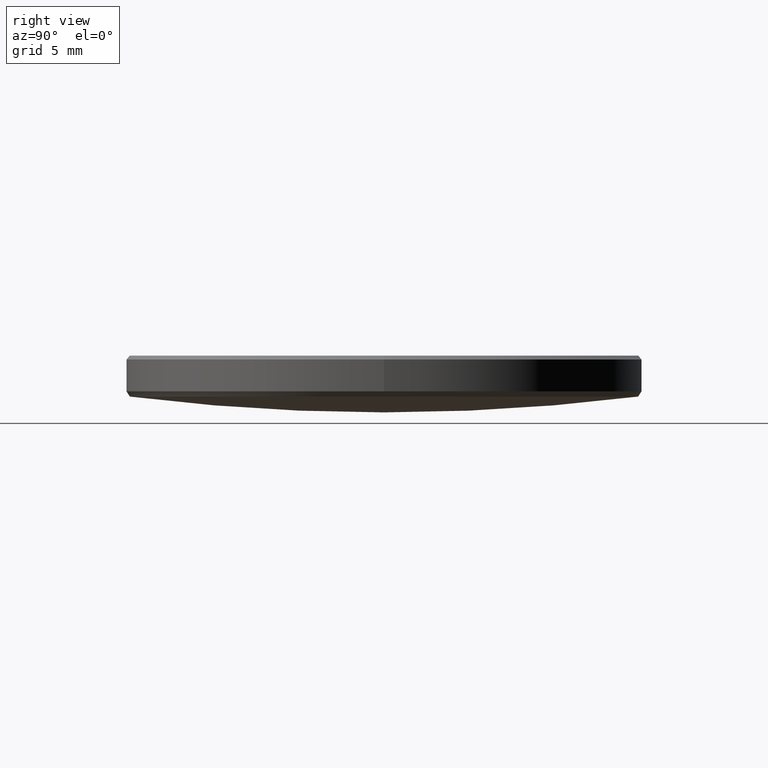
[diagram: clean part render]
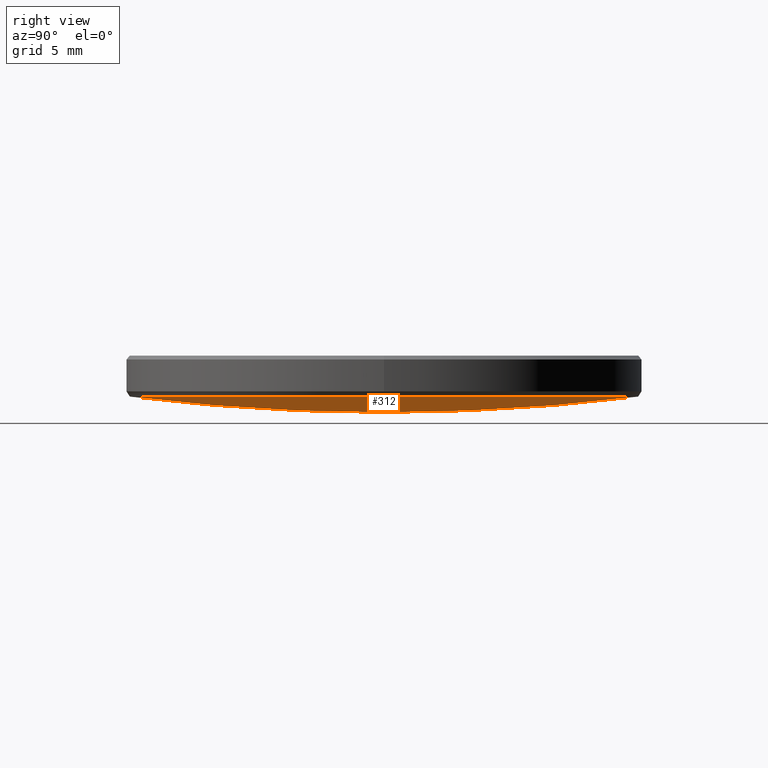
[diagram: same view with one face highlighted and labeled with its STEP entity id]
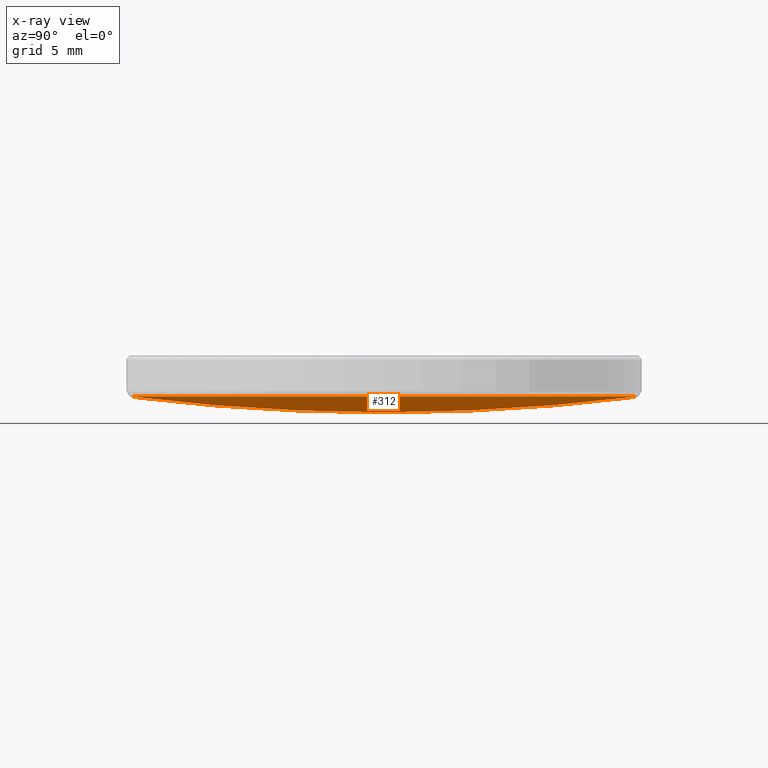
[diagram: x-ray of the same camera — body ghosted, the highlighted face saturated]
A machine part, right view. The second image highlights one B-rep face of the part: STEP entity #312.
The next image is the same camera in x-ray: the body ghosted, the highlighted face saturated — about 0% of this face is hidden behind the body in this view.
In plain terms, the highlighted spherical surface has radius 100.89 mm.
Its self-contained STEP definition (entity closure, byte-faithful):
#2 = CIRCLE ( 'NONE', #8, 12.50176226215777930 ) ;
#3 = ORIENTED_EDGE ( 'NONE', *, *, #305, .F. ) ;
#5 = VERTEX_POINT ( 'NONE', #322 ) ;
#8 = AXIS2_PLACEMENT_3D ( 'NONE', #143, #242, #31 ) ;
#10 = DIRECTION ( 'NONE',  ( 0.000000000000000000, 0.000000000000000000, -1.000000000000000000 ) ) ;
#11 = ORIENTED_EDGE ( 'NONE', *, *, #291, .T. ) ;
#12 = CARTESIAN_POINT ( 'NONE',  ( 0.000000000000000000, 0.000000000000000000, 104.0874722430335027 ) ) ;
#20 = CARTESIAN_POINT ( 'NONE',  ( 0.000000000000000000, 6.177730778298823983E-15, 3.197472243033488759 ) ) ;
#28 = DIRECTION ( 'NONE',  ( -1.224646799147353454E-16, -1.000000000000000000, 0.000000000000000000 ) ) ;
#31 = DIRECTION ( 'NONE',  ( 1.000000000000000000, 0.000000000000000000, 0.000000000000000000 ) ) ;
#40 = CARTESIAN_POINT ( 'NONE',  ( 0.000000000000000000, 0.000000000000000000, 104.0874722430335027 ) ) ;
#63 = CARTESIAN_POINT ( 'NONE',  ( 0.000000000000000000, 0.000000000000000000, 3.975045240485544529 ) ) ;
#69 = EDGE_LOOP ( 'NONE', ( #3, #271, #11, #232 ) ) ;
#74 = SPHERICAL_SURFACE ( 'NONE', #205, 100.8900000000000006 ) ;
#80 = AXIS2_PLACEMENT_3D ( 'NONE', #63, #184, #186 ) ;
#91 = VERTEX_POINT ( 'NONE', #20 ) ;
#110 = CARTESIAN_POINT ( 'NONE',  ( 0.000000000000000000, 12.50176226215772068, 3.975045240485544529 ) ) ;
#112 = CARTESIAN_POINT ( 'NONE',  ( -1.531024313805262852E-15, -12.50176226215772068, 3.975045240485544529 ) ) ;
#139 = FACE_OUTER_BOUND ( 'NONE', #69, .T. ) ;
#143 = CARTESIAN_POINT ( 'NONE',  ( 0.000000000000000000, 0.000000000000000000, 3.975045240485544529 ) ) ;
#150 = CIRCLE ( 'NONE', #80, 12.50176226215777930 ) ;
#174 = DIRECTION ( 'NONE',  ( 0.000000000000000000, 1.000000000000000000, 0.000000000000000000 ) ) ;
#184 = DIRECTION ( 'NONE',  ( 0.000000000000000000, 0.000000000000000000, -1.000000000000000000 ) ) ;
#186 = DIRECTION ( 'NONE',  ( 1.000000000000000000, 0.000000000000000000, 0.000000000000000000 ) ) ;
#195 = EDGE_CURVE ( 'NONE', #91, #297, #218, .T. ) ;
#205 = AXIS2_PLACEMENT_3D ( 'NONE', #40, #251, #174 ) ;
#207 = CARTESIAN_POINT ( 'NONE',  ( 0.000000000000000000, 0.000000000000000000, 104.0874722430335027 ) ) ;
#210 = VERTEX_POINT ( 'NONE', #112 ) ;
#218 = CIRCLE ( 'NONE', #328, 100.8900000000000006 ) ;
#232 = ORIENTED_EDGE ( 'NONE', *, *, #236, .T. ) ;
#236 = EDGE_CURVE ( 'NONE', #5, #210, #150, .T. ) ;
#242 = DIRECTION ( 'NONE',  ( 0.000000000000000000, 0.000000000000000000, -1.000000000000000000 ) ) ;
#251 = DIRECTION ( 'NONE',  ( -1.000000000000000000, 0.000000000000000000, 0.000000000000000000 ) ) ;
#256 = DIRECTION ( 'NONE',  ( -1.000000000000000000, 1.224646799147353207E-16, 0.000000000000000000 ) ) ;
#261 = DIRECTION ( 'NONE',  ( 1.000000000000000000, -0.000000000000000000, 0.000000000000000000 ) ) ;
#271 = ORIENTED_EDGE ( 'NONE', *, *, #195, .T. ) ;
#275 = CIRCLE ( 'NONE', #308, 100.8900000000000006 ) ;
#291 = EDGE_CURVE ( 'NONE', #297, #5, #2, .T. ) ;
#297 = VERTEX_POINT ( 'NONE', #110 ) ;
#305 = EDGE_CURVE ( 'NONE', #91, #210, #275, .T. ) ;
#308 = AXIS2_PLACEMENT_3D ( 'NONE', #207, #256, #28 ) ;
#312 = ADVANCED_FACE ( 'NONE', ( #139 ), #74, .T. ) ;
#322 = CARTESIAN_POINT ( 'NONE',  ( 12.50176226215777930, 0.000000000000000000, 3.975045240485544529 ) ) ;
#328 = AXIS2_PLACEMENT_3D ( 'NONE', #12, #261, #10 ) ;